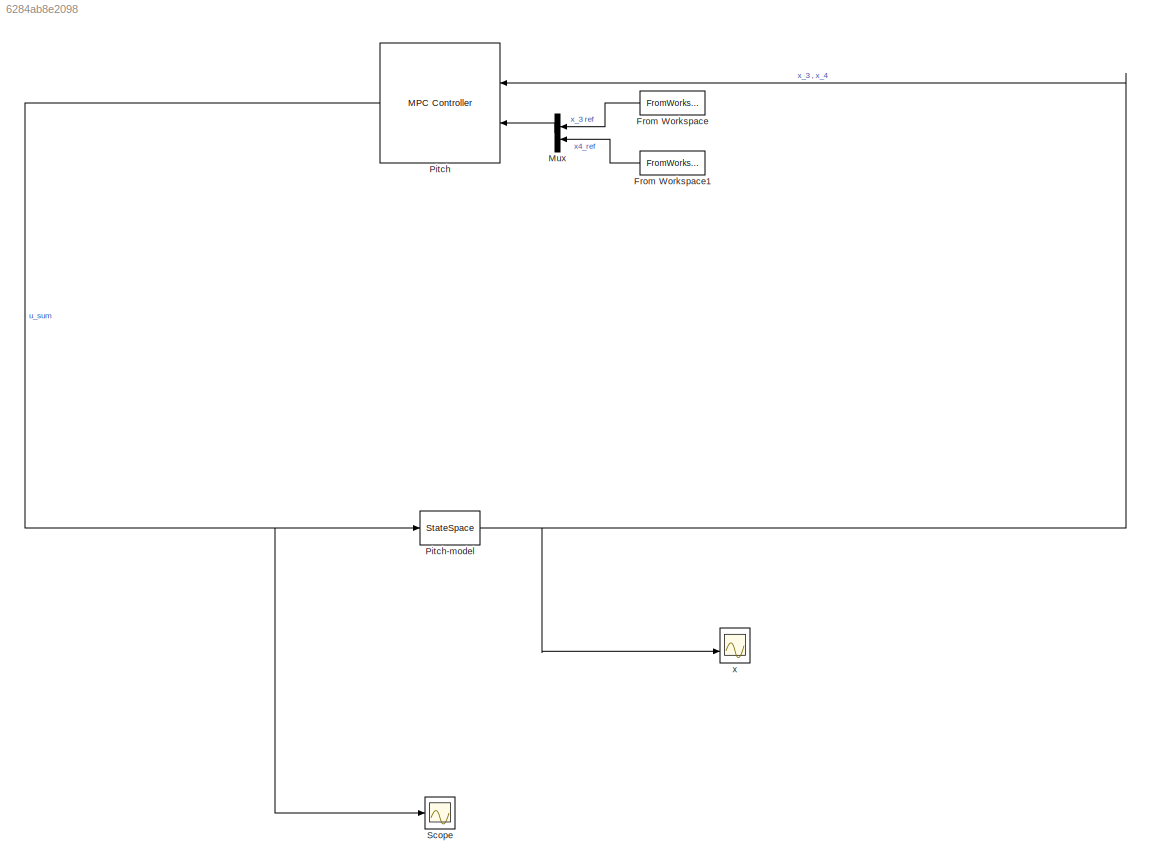
MODEL slx_6284ab8e2098
KIND model
CONFIG AbsTol = auto
CONFIG EnableMultiTasking = off
CONFIG FixedStep = auto
CONFIG MaxStep = auto
CONFIG MinStep = auto
CONFIG RelTol = 1e-3
CONFIG SampleTimeConstraint = Unconstrained
CONFIG SolverName = VariableStepAuto
CONFIG StartTime = 0.0
CONFIG StopTime = 10.0
BLOCK [FromWorkspace] From Workspace
  NameLocation = top
  OutputAfterFinalValue = Holding final value
  SampleTime = 0.1
  VariableName = x1_ref
BLOCK [FromWorkspace] From Workspace1
  NameLocation = top
  VariableName = x2_ref
BLOCK [Mux] Mux
  DisplayOption = bar
  Inputs = 2
  NameLocation = top
  Ports = [2, 1]
BLOCK [Reference] Pitch  REF=mpclib/MPC Controller  (lib defined in mdl_ae329e0e0455)
  NameLocation = top
  Ports = [2, 1]
  SCDEnableBlockLinearizationSpecification = on
  SourceBlock = mpclib/MPC Controller
  SourceProductBaseCode = MP
  SourceType = MPC
BLOCK [StateSpace] Pitch-model
  A = A_pitch
  B = B_pitch
  C = C_pitch
  D = D_pitch
  InitialCondition = 0
  Ports = [1, 1]
BLOCK [Scope] Scope
  Floating = off
  NumInputPorts = 1
  Ports = [1]
  ScopeSpecificationString = Simulink.scopes.TimeScopeBlockCfg('CurrentConfiguration', extmgr.ConfigurationSet(extmgr.Configuration('Core','General UI',true),extmgr.Configuration('Core','Source UI',true),extmgr.Configuration('Sources','WiredSimulink',true,'DataLoggingVariableName','ScopeData1'),extmgr.Configuration('Visuals','Time Domain',true,'SerializedDisplays',{struct('MinYLimReal','-0.75','MaxYLimReal','1.75','YLabelReal...<+1439ch>
BLOCK [Scope] x
  Floating = off
  NumInputPorts = 2
  Ports = [2]
  ScopeSpecificationString = Simulink.scopes.TimeScopeBlockCfg('CurrentConfiguration', extmgr.ConfigurationSet(extmgr.Configuration('Core','General UI',true),extmgr.Configuration('Core','Source UI',true),extmgr.Configuration('Sources','WiredSimulink',true),extmgr.Configuration('Visuals','Time Domain',true,'SerializedDisplays',{struct('MinYLimReal','-0.04908','MaxYLimReal','0.4417','YLabelReal','','MinYLimMag','0.00000','MaxYL...<+1485ch>
LINE From Workspace1:1 -> Mux:2
LINE From Workspace:1 -> Mux:1
LINE Mux:1 -> Pitch:2
NET Pitch-model:1 -> Pitch:1, x:2
NET Pitch:1 -> Pitch-model:1, Scope:1
note: NET lines group one-source signal fan-out (src -> all destinations, sorted); 1:1 wires keep LINE
